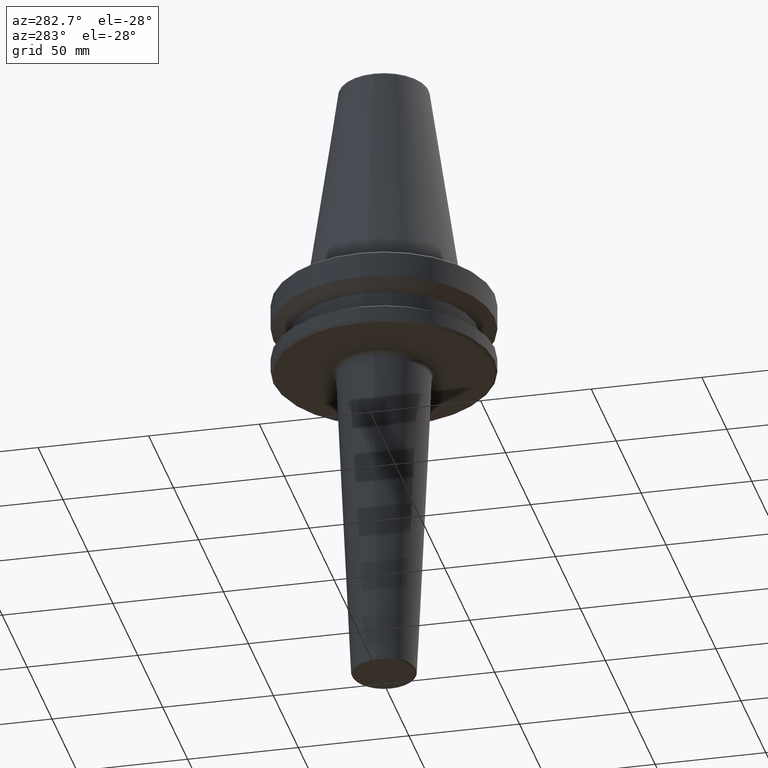
[diagram: clean part render]
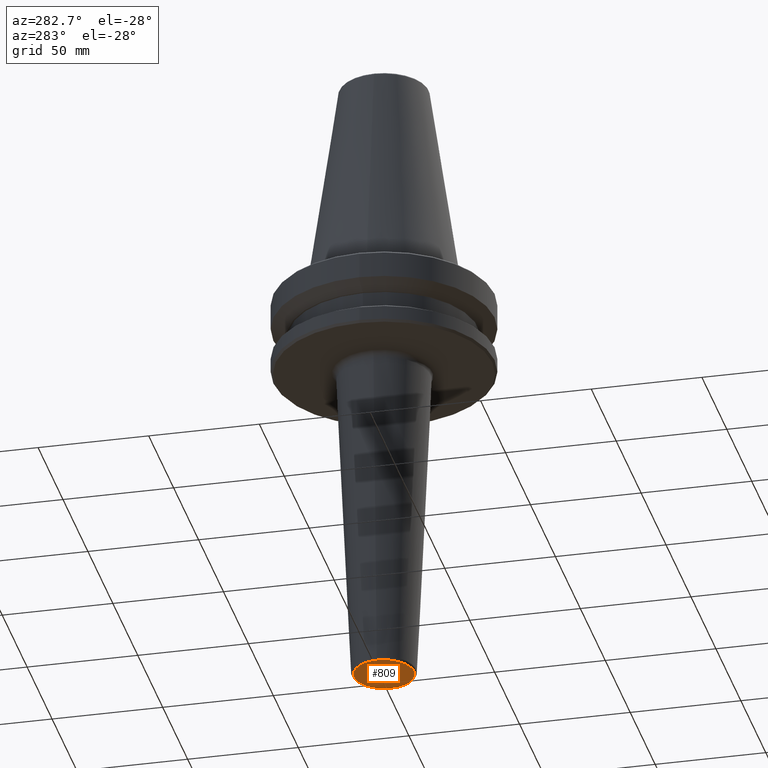
[diagram: same view with one face highlighted and labeled with its STEP entity id]
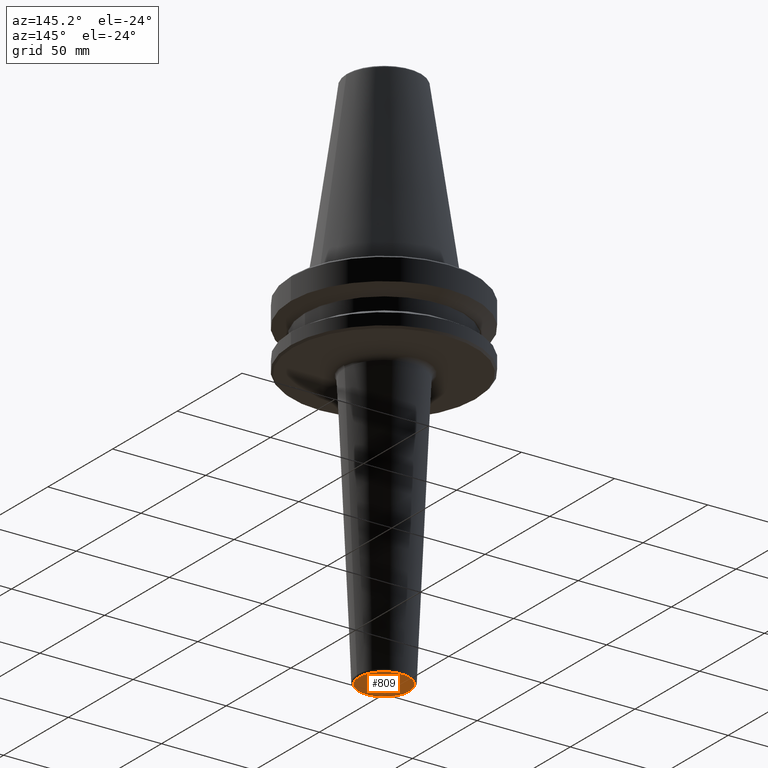
[diagram: same view with one face highlighted and labeled with its STEP entity id]
A machine part, auxiliary view. The second image highlights one B-rep face of the part: STEP entity #809.
A second angle (auxiliary view) of the same face is appended — the face is thin or edge-on in the first view.
In plain terms, the highlighted planar face has unit normal (0, 0, -1).
Its self-contained STEP definition (entity closure, byte-faithful):
#33 = CIRCLE ( 'NONE', #910, 13.54398801205987000 ) ;
#37 = AXIS2_PLACEMENT_3D ( 'NONE', #880, #898, #228 ) ;
#49 = EDGE_CURVE ( 'NONE', #126, #477, #33, .T. ) ;
#50 = CARTESIAN_POINT ( 'NONE',  ( 0.0000000000000000000, 3.852667479542930100E-013, -188.0000000000000000 ) ) ;
#126 = VERTEX_POINT ( 'NONE', #312 ) ;
#132 = EDGE_LOOP ( 'NONE', ( #526, #652 ) ) ;
#192 = CARTESIAN_POINT ( 'NONE',  ( -13.54398801205987000, 1.719830592879546100E-015, -187.9999999999999700 ) ) ;
#228 = DIRECTION ( 'NONE',  ( 1.000000000000000000, 0.0000000000000000000, 0.0000000000000000000 ) ) ;
#312 = CARTESIAN_POINT ( 'NONE',  ( 13.54398801205987000, 0.0000000000000000000, -187.9999999999999700 ) ) ;
#431 = CARTESIAN_POINT ( 'NONE',  ( 0.0000000000000000000, 0.0000000000000000000, -187.9999999999999700 ) ) ;
#444 = DIRECTION ( 'NONE',  ( 1.000000000000000000, 0.0000000000000000000, 0.0000000000000000000 ) ) ;
#477 = VERTEX_POINT ( 'NONE', #192 ) ;
#481 = DIRECTION ( 'NONE',  ( -0.0000000000000000000, -0.0000000000000000000, 1.000000000000000000 ) ) ;
#526 = ORIENTED_EDGE ( 'NONE', *, *, #49, .F. ) ;
#527 = DIRECTION ( 'NONE',  ( -1.000000000000000000, 0.0000000000000000000, -0.0000000000000000000 ) ) ;
#600 = PLANE ( 'NONE',  #728 ) ;
#615 = FACE_OUTER_BOUND ( 'NONE', #132, .T. ) ;
#652 = ORIENTED_EDGE ( 'NONE', *, *, #858, .F. ) ;
#728 = AXIS2_PLACEMENT_3D ( 'NONE', #50, #899, #527 ) ;
#781 = CIRCLE ( 'NONE', #37, 13.54398801205987000 ) ;
#809 = ADVANCED_FACE ( 'NONE', ( #615 ), #600, .T. ) ;
#858 = EDGE_CURVE ( 'NONE', #477, #126, #781, .T. ) ;
#880 = CARTESIAN_POINT ( 'NONE',  ( 0.0000000000000000000, 0.0000000000000000000, -187.9999999999999700 ) ) ;
#898 = DIRECTION ( 'NONE',  ( -0.0000000000000000000, -0.0000000000000000000, 1.000000000000000000 ) ) ;
#899 = DIRECTION ( 'NONE',  ( 0.0000000000000000000, 0.0000000000000000000, -1.000000000000000000 ) ) ;
#910 = AXIS2_PLACEMENT_3D ( 'NONE', #431, #481, #444 ) ;